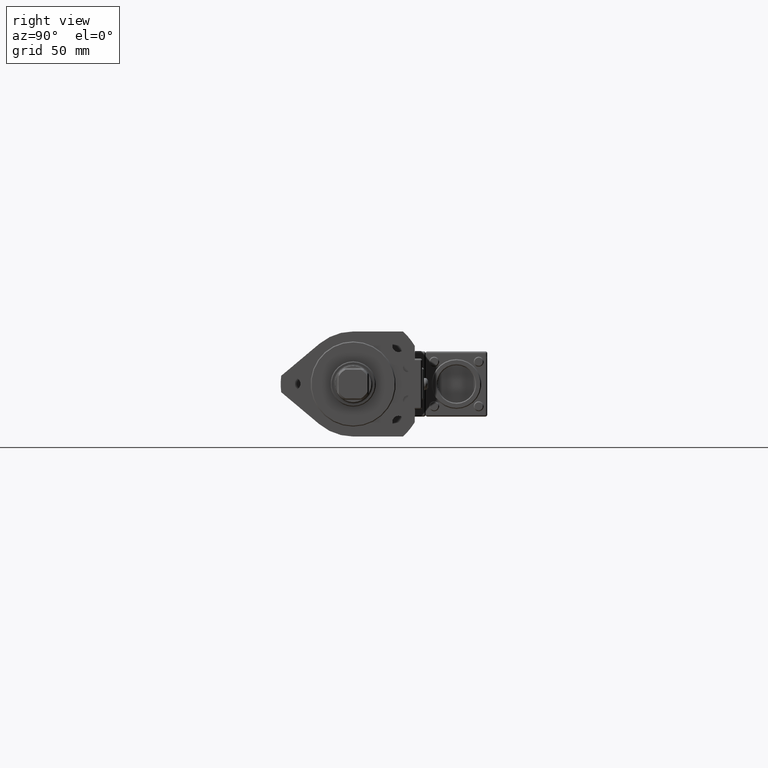
[diagram: clean part render]
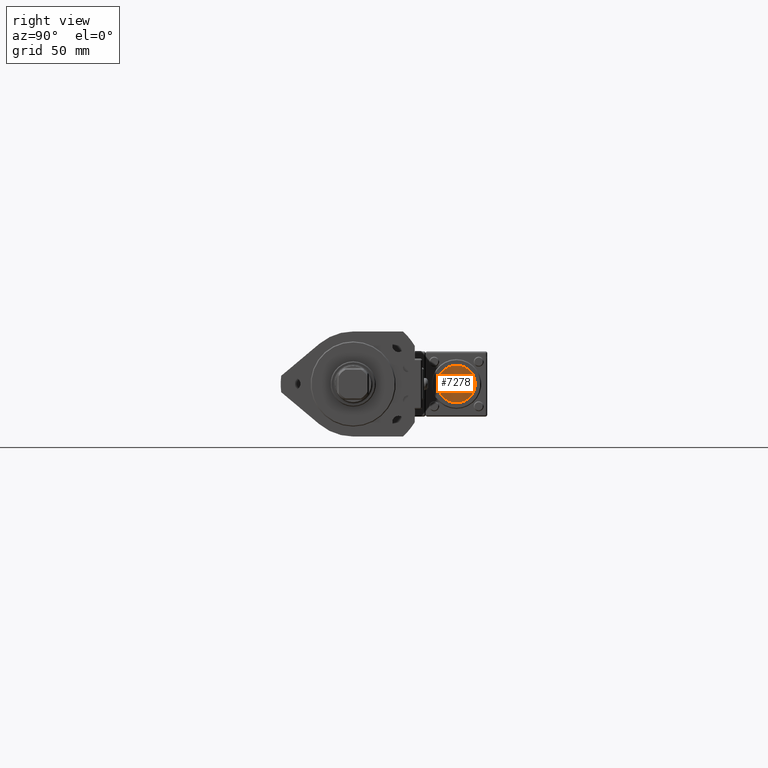
[diagram: same view with one face highlighted and labeled with its STEP entity id]
A machine part, right view. The second image highlights one B-rep face of the part: STEP entity #7278.
In plain terms, the highlighted planar face has unit normal (-1, 0, 0).
Its self-contained STEP definition (entity closure, byte-faithful):
#416 = DIRECTION ( 'NONE',  ( -1.000000000000000000, -0.0000000000000000000, 0.0000000000000000000 ) ) ;
#925 = CARTESIAN_POINT ( 'NONE',  ( 26.20000000000000300, 16.99999999999999300, 10.39999999999999700 ) ) ;
#1708 = ORIENTED_EDGE ( 'NONE', *, *, #6031, .T. ) ;
#2012 = AXIS2_PLACEMENT_3D ( 'NONE', #5126, #416, #7083 ) ;
#2783 = VERTEX_POINT ( 'NONE', #925 ) ;
#3439 = FACE_OUTER_BOUND ( 'NONE', #8928, .T. ) ;
#4010 = CARTESIAN_POINT ( 'NONE',  ( 26.20000000000000300, 16.99999999999999300, -3.469446951953614200E-015 ) ) ;
#4743 = ORIENTED_EDGE ( 'NONE', *, *, #8190, .T. ) ;
#4969 = DIRECTION ( 'NONE',  ( 0.0000000000000000000, 0.0000000000000000000, -1.000000000000000000 ) ) ;
#5126 = CARTESIAN_POINT ( 'NONE',  ( 26.20000000000000300, 31.26999999999999200, -14.26999999999999600 ) ) ;
#5388 = CARTESIAN_POINT ( 'NONE',  ( 26.20000000000000300, 16.99999999999999300, -3.469446951953614200E-015 ) ) ;
#5689 = VERTEX_POINT ( 'NONE', #10165 ) ;
#6031 = EDGE_CURVE ( 'NONE', #5689, #2783, #8531, .T. ) ;
#6129 = PLANE ( 'NONE',  #2012 ) ;
#6338 = DIRECTION ( 'NONE',  ( 0.0000000000000000000, 0.0000000000000000000, -1.000000000000000000 ) ) ;
#7083 = DIRECTION ( 'NONE',  ( 0.0000000000000000000, 0.0000000000000000000, 1.000000000000000000 ) ) ;
#7278 = ADVANCED_FACE ( 'NONE', ( #3439 ), #6129, .F. ) ;
#8190 = EDGE_CURVE ( 'NONE', #2783, #5689, #11660, .T. ) ;
#8531 = CIRCLE ( 'NONE', #9212, 10.40000000000000000 ) ;
#8928 = EDGE_LOOP ( 'NONE', ( #4743, #1708 ) ) ;
#9212 = AXIS2_PLACEMENT_3D ( 'NONE', #4010, #10708, #4969 ) ;
#10165 = CARTESIAN_POINT ( 'NONE',  ( 26.20000000000000300, 16.99999999999999300, -10.40000000000000200 ) ) ;
#10441 = AXIS2_PLACEMENT_3D ( 'NONE', #5388, #12092, #6338 ) ;
#10708 = DIRECTION ( 'NONE',  ( 1.000000000000000000, 0.0000000000000000000, 0.0000000000000000000 ) ) ;
#11660 = CIRCLE ( 'NONE', #10441, 10.40000000000000000 ) ;
#12092 = DIRECTION ( 'NONE',  ( 1.000000000000000000, 0.0000000000000000000, 0.0000000000000000000 ) ) ;